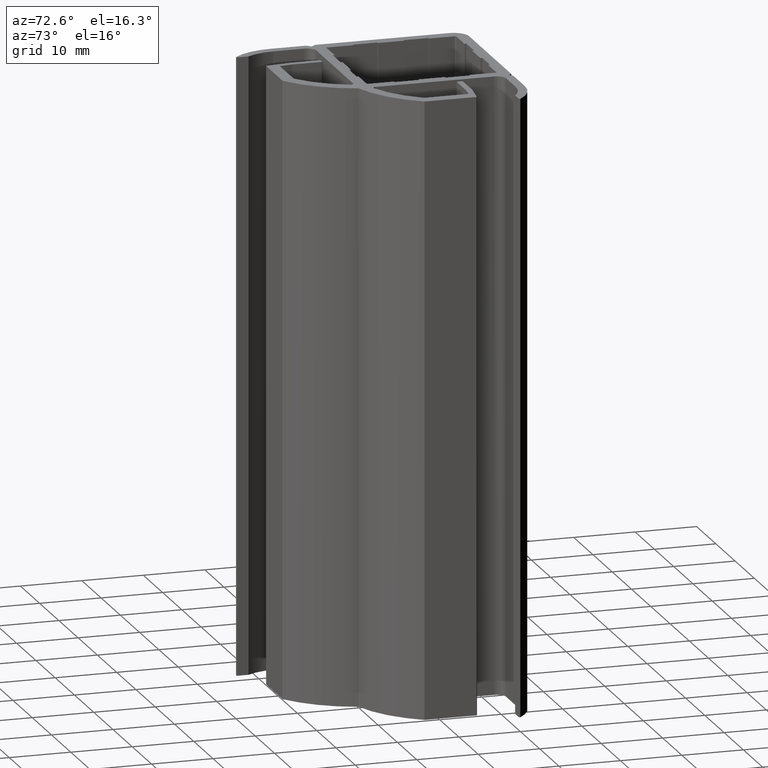
[diagram: clean part render]
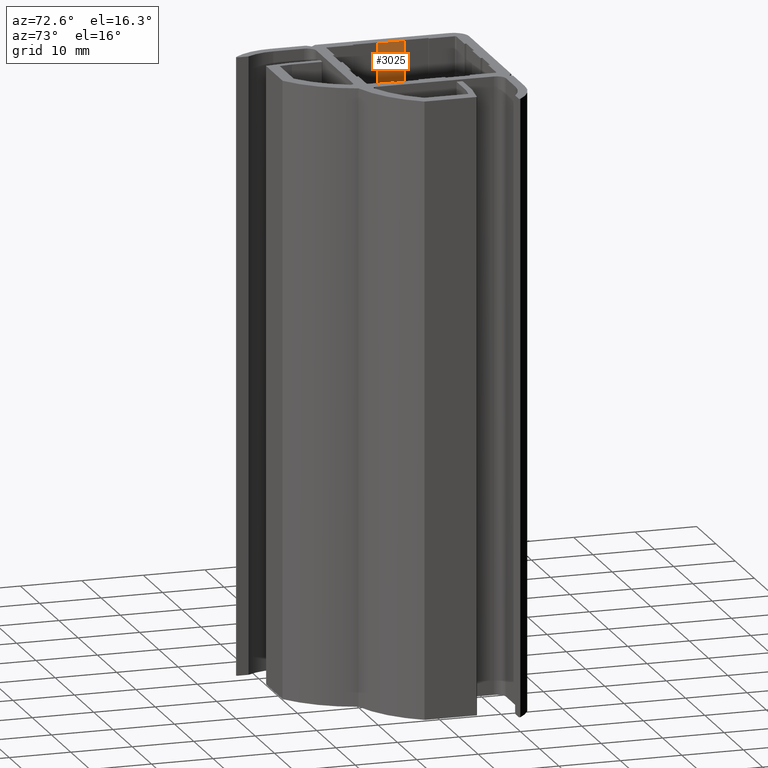
[diagram: same view with one face highlighted and labeled with its STEP entity id]
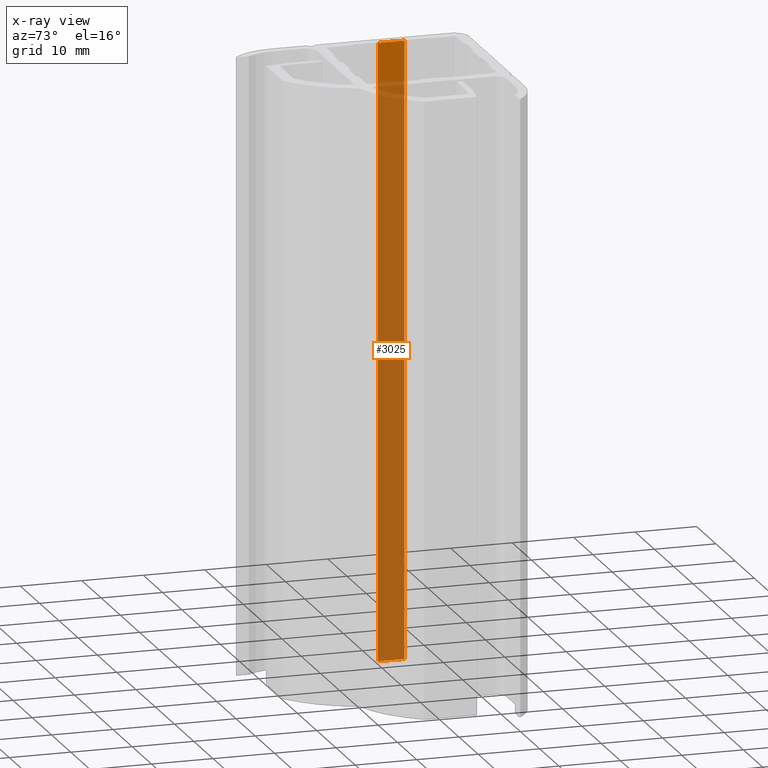
[diagram: x-ray of the same camera — body ghosted, the highlighted face saturated]
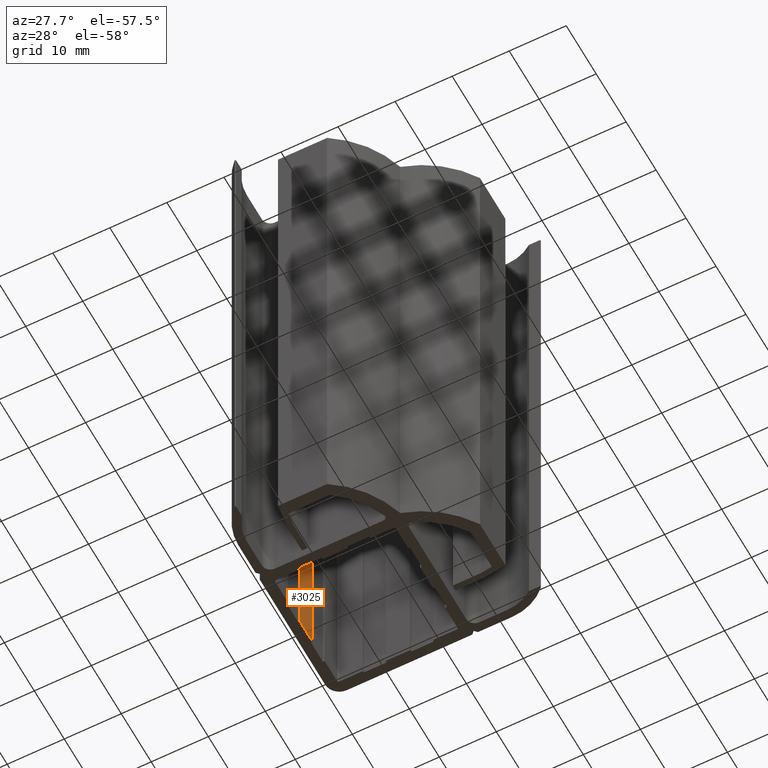
[diagram: same view with one face highlighted and labeled with its STEP entity id]
A machine part, auxiliary view. The second image highlights one B-rep face of the part: STEP entity #3025.
The next image is the same camera in x-ray: the body ghosted, the highlighted face saturated — about 94% of this face is hidden behind the body in this view.
A second angle (auxiliary view) of the same face is appended — the face is thin or edge-on in the first view.
In plain terms, the highlighted planar face has unit normal (1, 0, 0).
Its self-contained STEP definition (entity closure, byte-faithful):
#2969=CARTESIAN_POINT('',(1.950000000000955,-1.253553390593140,-100.0));
#2970=VERTEX_POINT('',#2969);
#2977=CARTESIAN_POINT('',(1.950000000000955,-1.253553390593140,0.0));
#2978=VERTEX_POINT('',#2977);
#2979=CARTESIAN_POINT('',(1.950000000000955,-1.253553390593140,-100.0));
#2980=DIRECTION('',(0.0,0.0,1.0));
#2981=VECTOR('',#2980,100.0);
#2982=LINE('',#2979,#2981);
#2983=EDGE_CURVE('',#2970,#2978,#2982,.T.);
#2995=CARTESIAN_POINT('',(1.950000000000955,-1.253553390593140,-100.0));
#2996=DIRECTION('',(1.0,0.0,0.0));
#2997=DIRECTION('',(0.0,1.0,0.0));
#2998=AXIS2_PLACEMENT_3D('',#2995,#2996,#2997);
#2999=PLANE('',#2998);
#3000=CARTESIAN_POINT('',(1.950000000000955,3.046446609406786,-100.0));
#3001=VERTEX_POINT('',#3000);
#3002=CARTESIAN_POINT('',(1.950000000000955,-1.253553390593140,-100.0));
#3003=DIRECTION('',(0.0,1.0,0.0));
#3004=VECTOR('',#3003,4.299999999999926);
#3005=LINE('',#3002,#3004);
#3006=EDGE_CURVE('',#2970,#3001,#3005,.T.);
#3007=ORIENTED_EDGE('',*,*,#3006,.T.);
#3008=CARTESIAN_POINT('',(1.950000000000955,3.046446609406786,0.0));
#3009=VERTEX_POINT('',#3008);
#3010=CARTESIAN_POINT('',(1.950000000000955,3.046446609406786,-100.0));
#3011=DIRECTION('',(0.0,0.0,1.0));
#3012=VECTOR('',#3011,100.0);
#3013=LINE('',#3010,#3012);
#3014=EDGE_CURVE('',#3001,#3009,#3013,.T.);
#3015=ORIENTED_EDGE('',*,*,#3014,.T.);
#3016=CARTESIAN_POINT('',(1.950000000000955,-1.253553390593140,0.0));
#3017=DIRECTION('',(0.0,1.0,0.0));
#3018=VECTOR('',#3017,4.299999999999926);
#3019=LINE('',#3016,#3018);
#3020=EDGE_CURVE('',#2978,#3009,#3019,.T.);
#3021=ORIENTED_EDGE('',*,*,#3020,.F.);
#3022=ORIENTED_EDGE('',*,*,#2983,.F.);
#3023=EDGE_LOOP('',(#3007,#3015,#3021,#3022));
#3024=FACE_OUTER_BOUND('',#3023,.T.);
#3025=ADVANCED_FACE('',(#3024),#2999,.T.);